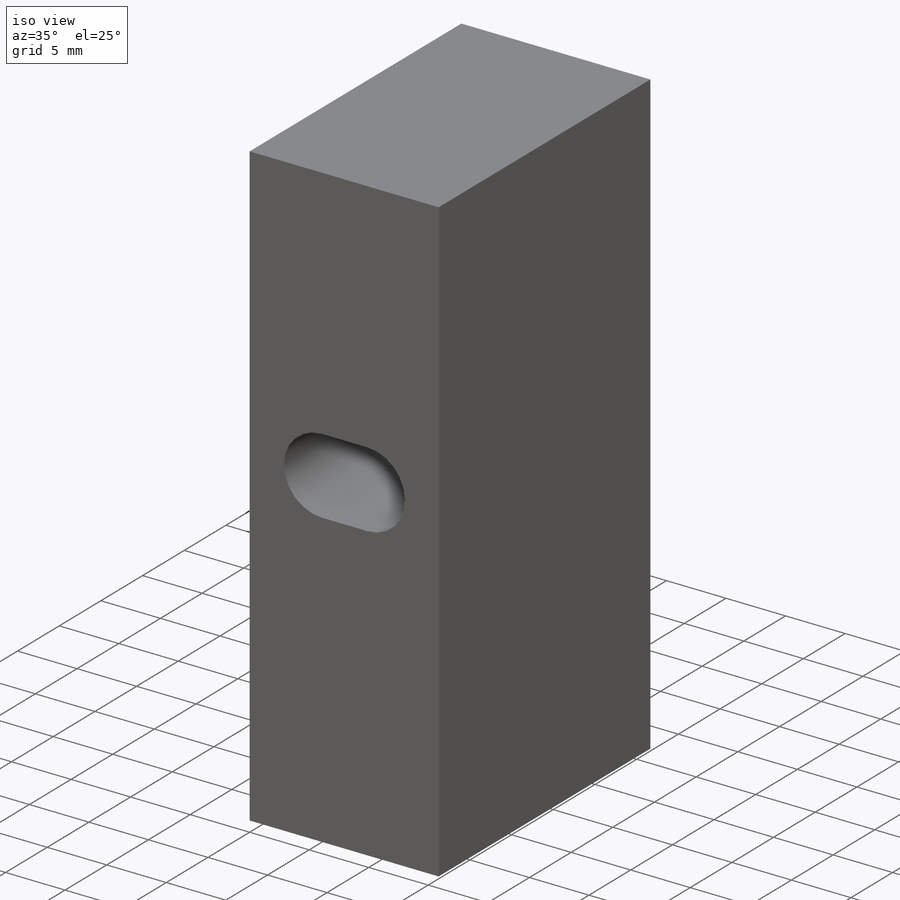
[diagram: iso view]
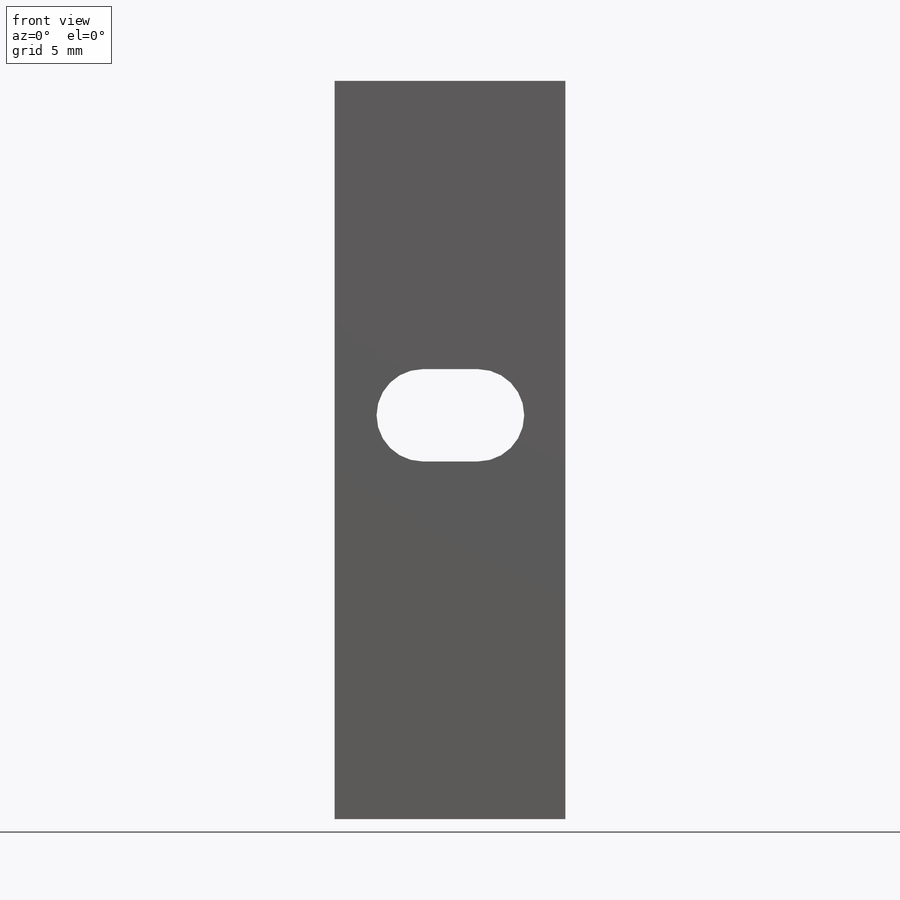
[diagram: front view]
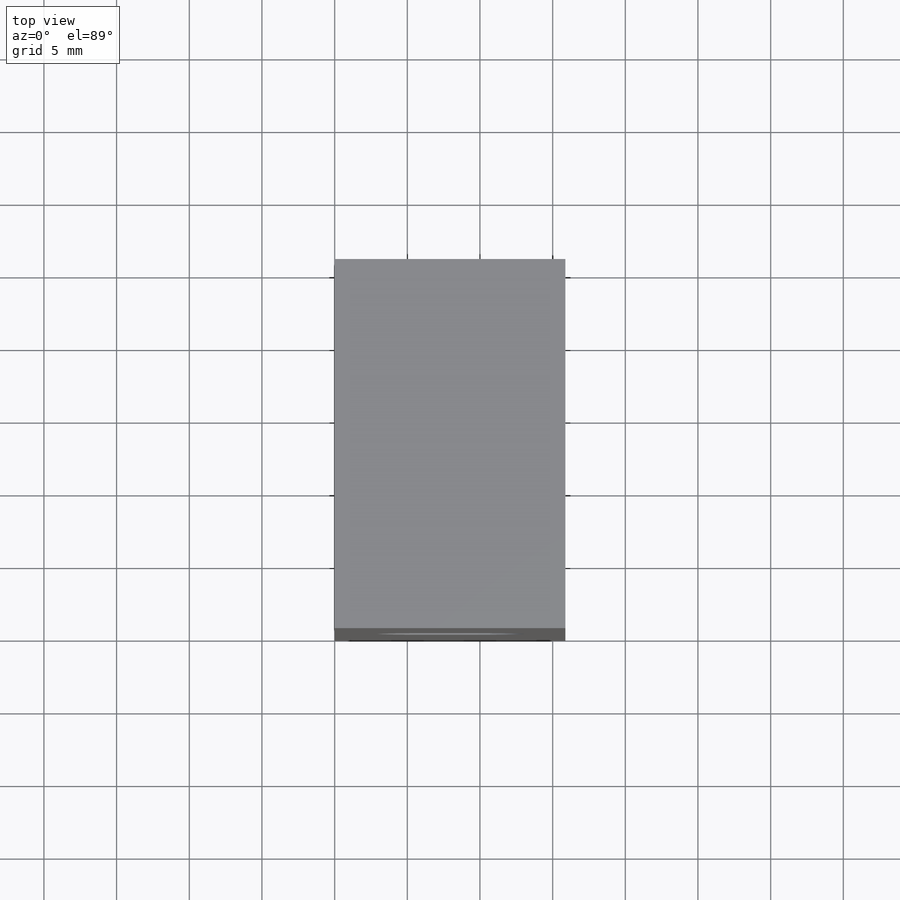
[diagram: top view]
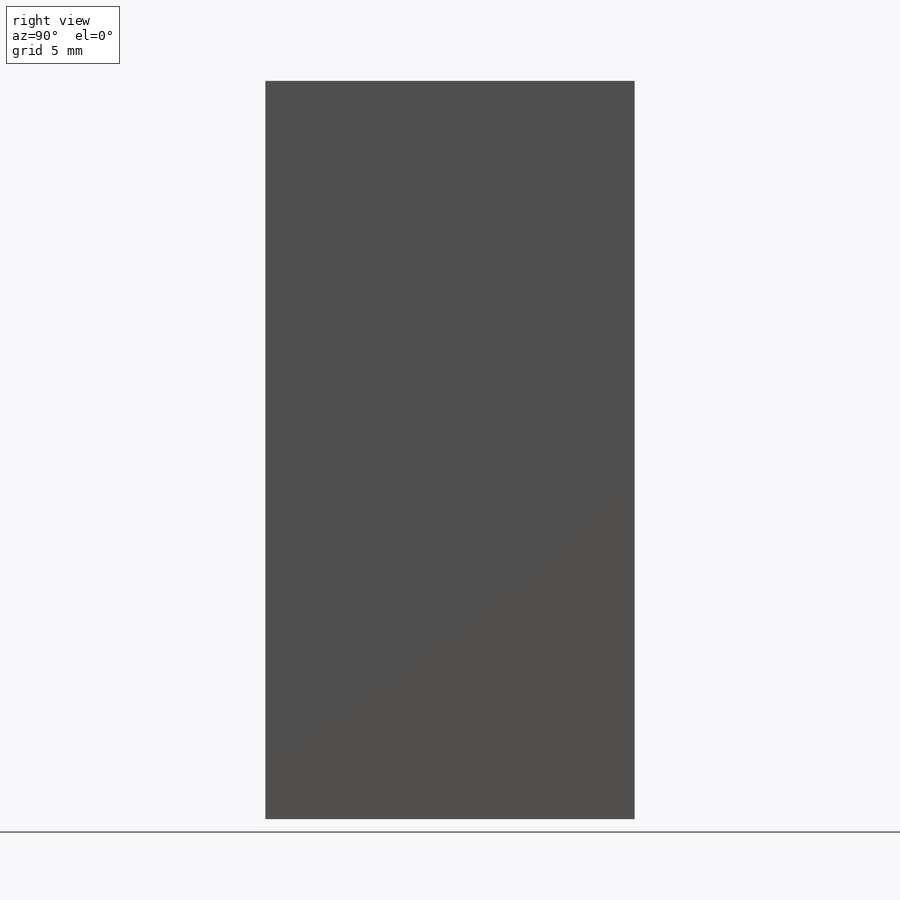
[diagram: right view]
SOLIDWORKS PART (.sldprt)
format: sldprt  version: not decoded by parser v0  size: 189,952 bytes
history: native  units: mm
features: sketch x5, hole x2, material x1, extrude x1 (+13 scaffold rows collapsed)
feature tree (22):
  scaffold x13  (default folders/planes/origin — collapsed)
  material  "Material <not specified>"
  sketch  "Sketch1"  dims[D1=15.875mm D2=25.4mm]
  extrude  "Boss-Extrude1"  Depth=50.8mm
  hole  "Tap Drill for #10-24 Tap1"  Diameter=3.7973mm Depth=20.701mm
  sketch  "Sketch3"  dims[D1=6.0mm D2=6.0mm]
  sketch  "Sketch4"  dims[hole-wizard template sketch: 47 standard entries collapsed; hole parameters kept: c15.Hole Depth=20.701mm c15.D3=~14.816244mm c15.Drill Angle=118.0deg]
  hole  "Tap Drill Slot for #10-24 Tap1"  Diameter=6.35mm Depth=25.4mm
  sketch  "Sketch5"  dims[D1=10.16mm]
  sketch  "Sketch6"  dims[Thru Hole Dia.=6.35mm Thru Hole Depth=25.4mm]
decode coverage: 8 of 8 modeling features carry decoded parameters
note: ~ marks probable driven/reference dimensions
note: suppression state not decoded; provenance and decode notes live in map.json
